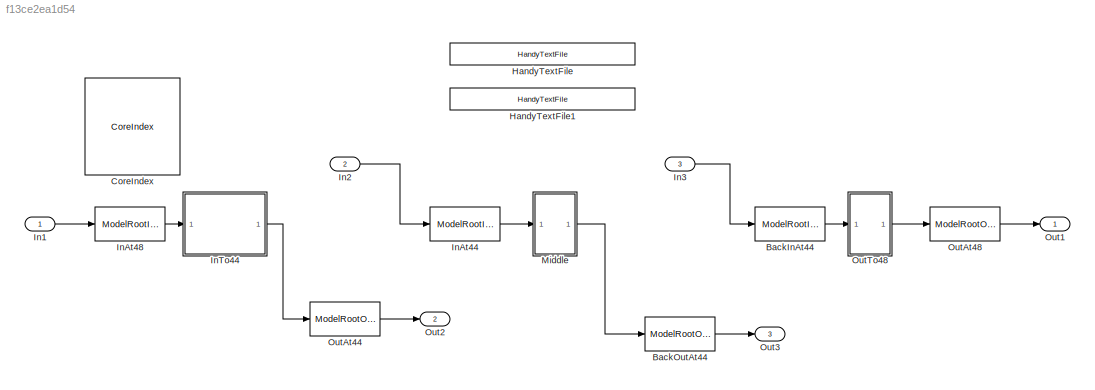
MODEL slx_f13ce2ea1d54
KIND model
CONFIG AbsTol = auto
CONFIG EnableMultiTasking = on
CONFIG FixedStep = auto
CONFIG InitFcn = ModelSimpleSrcSettings=BTConfig.GetModelSettings();\n\nModelSimpleSrcSettings.Validate();\nModelSimpleSrcSettings.DoMaskInit('ModelSimpleSrcSettings');
CONFIG MaxStep = auto
CONFIG MinStep = auto
CONFIG RelTol = 1e-3
CONFIG SampleTimeConstraint = Unconstrained
CONFIG SolverName = FixedStepDiscrete
CONFIG StartTime = 0.0
CONFIG StopTime = 1.0
BLOCK [Reference] BackInAt44  REF=EdgePorts/ModelRootInport
  SourceBlock = EdgePorts/ModelRootInport
  SourceProductName = Bose Talaria
  SourceType = Talaria Model Root Inport
BLOCK [Reference] BackOutAt44  REF=EdgePorts/ModelRootOutport
  SourceBlock = EdgePorts/ModelRootOutport
  SourceProductName = Bose Talaria
  SourceType = Talaria Model Root Outport
BLOCK [Reference] CoreIndex  REF=FeaturePath/CoreIndex
  SourceBlock = FeaturePath/CoreIndex
  SourceProductName = Bose Talaria
  SourceType = Talaria Core Index
BLOCK [Reference] HandyTextFile  REF=HandyTextFile/HandyTextFile
  SourceBlock = HandyTextFile/HandyTextFile
  SourceProductName = Bose Talaria
  SourceType = Talaria Handy Text File
BLOCK [Reference] HandyTextFile1  REF=HandyTextFile/HandyTextFile
  SourceBlock = HandyTextFile/HandyTextFile
  SourceProductName = Bose Talaria
  SourceType = Talaria Handy Text File
BLOCK [Inport] In1
BLOCK [Inport] In2
  Port = 2
BLOCK [Inport] In3
  Port = 3
BLOCK [Reference] InAt44  REF=EdgePorts/ModelRootInport
  SourceBlock = EdgePorts/ModelRootInport
  SourceProductName = Bose Talaria
  SourceType = Talaria Model Root Inport
BLOCK [Reference] InAt48  REF=EdgePorts/ModelRootInport
  SourceBlock = EdgePorts/ModelRootInport
  SourceProductName = Bose Talaria
  SourceType = Talaria Model Root Inport
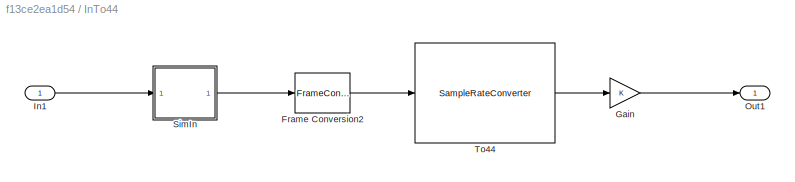
BLOCK [SubSystem] InTo44
  TreatAsAtomicUnit = on
BLOCK [FrameConversion] InTo44/Frame Conversion2
BLOCK [Gain] InTo44/Gain
BLOCK [Inport] InTo44/In1
  SampleTime = 32/48000
BLOCK [Outport] InTo44/Out1
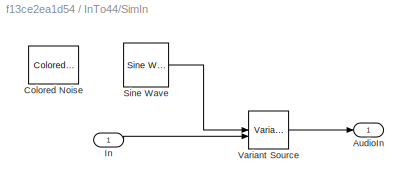
BLOCK [SubSystem] InTo44/SimIn
  TreatAsAtomicUnit = on
BLOCK [Outport] InTo44/SimIn/AudioIn
  VectorParamsAs1DForOutWhenUnconnected = off
BLOCK [Reference] InTo44/SimIn/Colored Noise  REF=dspsrcs4/Colored Noise
  Commented = on
  SourceBlock = dspsrcs4/Colored Noise
  SourceType = dsp.simulink.ColoredNoise
BLOCK [Inport] InTo44/SimIn/In
  OutDataTypeStr = single
  SampleTime = 32/48000
  VarSizeSig = No
BLOCK [Reference] InTo44/SimIn/Sine Wave  REF=dspsrcs4/Sine Wave
  SourceBlock = dspsrcs4/Sine Wave
  SourceType = Sine Wave
BLOCK [VariantSource] InTo44/SimIn/Variant Source
  ShowConditionOnBlock = on
  VariantControlMode = sim codegen switching
BLOCK [Reference] InTo44/To44  REF=SampleRateConverterBtc/SampleRateConverter
  SourceBlock = SampleRateConverterBtc/SampleRateConverter
  SourceProductName = Bose Blocklib
  SourceType = Blocklib SampleRateConverter
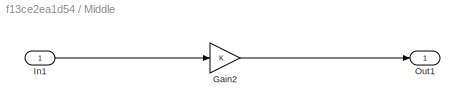
BLOCK [SubSystem] Middle
  TreatAsAtomicUnit = on
BLOCK [Gain] Middle/Gain2
BLOCK [Inport] Middle/In1
BLOCK [Outport] Middle/Out1
BLOCK [Outport] Out1
BLOCK [Outport] Out2
  Port = 2
BLOCK [Outport] Out3
  Port = 3
BLOCK [Reference] OutAt44  REF=EdgePorts/ModelRootOutport
  SourceBlock = EdgePorts/ModelRootOutport
  SourceProductName = Bose Talaria
  SourceType = Talaria Model Root Outport
BLOCK [Reference] OutAt48  REF=EdgePorts/ModelRootOutport
  SourceBlock = EdgePorts/ModelRootOutport
  SourceProductName = Bose Talaria
  SourceType = Talaria Model Root Outport
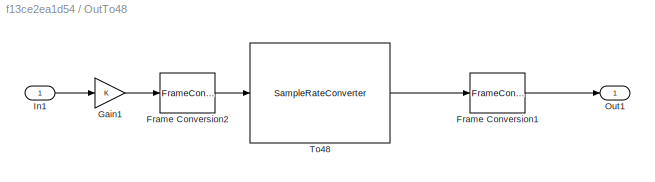
BLOCK [SubSystem] OutTo48
  TreatAsAtomicUnit = on
BLOCK [FrameConversion] OutTo48/Frame Conversion1
  OutFrame = Sample-based
BLOCK [FrameConversion] OutTo48/Frame Conversion2
BLOCK [Gain] OutTo48/Gain1
BLOCK [Inport] OutTo48/In1
BLOCK [Outport] OutTo48/Out1
BLOCK [Reference] OutTo48/To48  REF=SampleRateConverterBtc/SampleRateConverter
  SourceBlock = SampleRateConverterBtc/SampleRateConverter
  SourceProductName = Bose Blocklib
  SourceType = Blocklib SampleRateConverter
LINE BackInAt44:1 -> OutTo48:1
LINE BackOutAt44:1 -> Out3:1
LINE In1:1 -> InAt48:1
LINE In2:1 -> InAt44:1
LINE In3:1 -> BackInAt44:1
LINE InAt44:1 -> Middle:1
LINE InAt48:1 -> InTo44:1
LINE InTo44/Frame Conversion2:1 -> InTo44/To44:1
LINE InTo44/Gain:1 -> InTo44/Out1:1
LINE InTo44/In1:1 -> InTo44/SimIn:1
LINE InTo44/SimIn/In:1 -> InTo44/SimIn/Variant Source:2
LINE InTo44/SimIn/Sine Wave:1 -> InTo44/SimIn/Variant Source:1
LINE InTo44/SimIn/Variant Source:1 -> InTo44/SimIn/AudioIn:1
LINE InTo44/SimIn:1 -> InTo44/Frame Conversion2:1
LINE InTo44/To44:1 -> InTo44/Gain:1
LINE InTo44:1 -> OutAt44:1
LINE Middle/Gain2:1 -> Middle/Out1:1
LINE Middle/In1:1 -> Middle/Gain2:1
LINE Middle:1 -> BackOutAt44:1
LINE OutAt44:1 -> Out2:1
LINE OutAt48:1 -> Out1:1
LINE OutTo48/Frame Conversion1:1 -> OutTo48/Out1:1
LINE OutTo48/Frame Conversion2:1 -> OutTo48/To48:1
LINE OutTo48/Gain1:1 -> OutTo48/Frame Conversion2:1
LINE OutTo48/In1:1 -> OutTo48/Gain1:1
LINE OutTo48/To48:1 -> OutTo48/Frame Conversion1:1
LINE OutTo48:1 -> OutAt48:1
